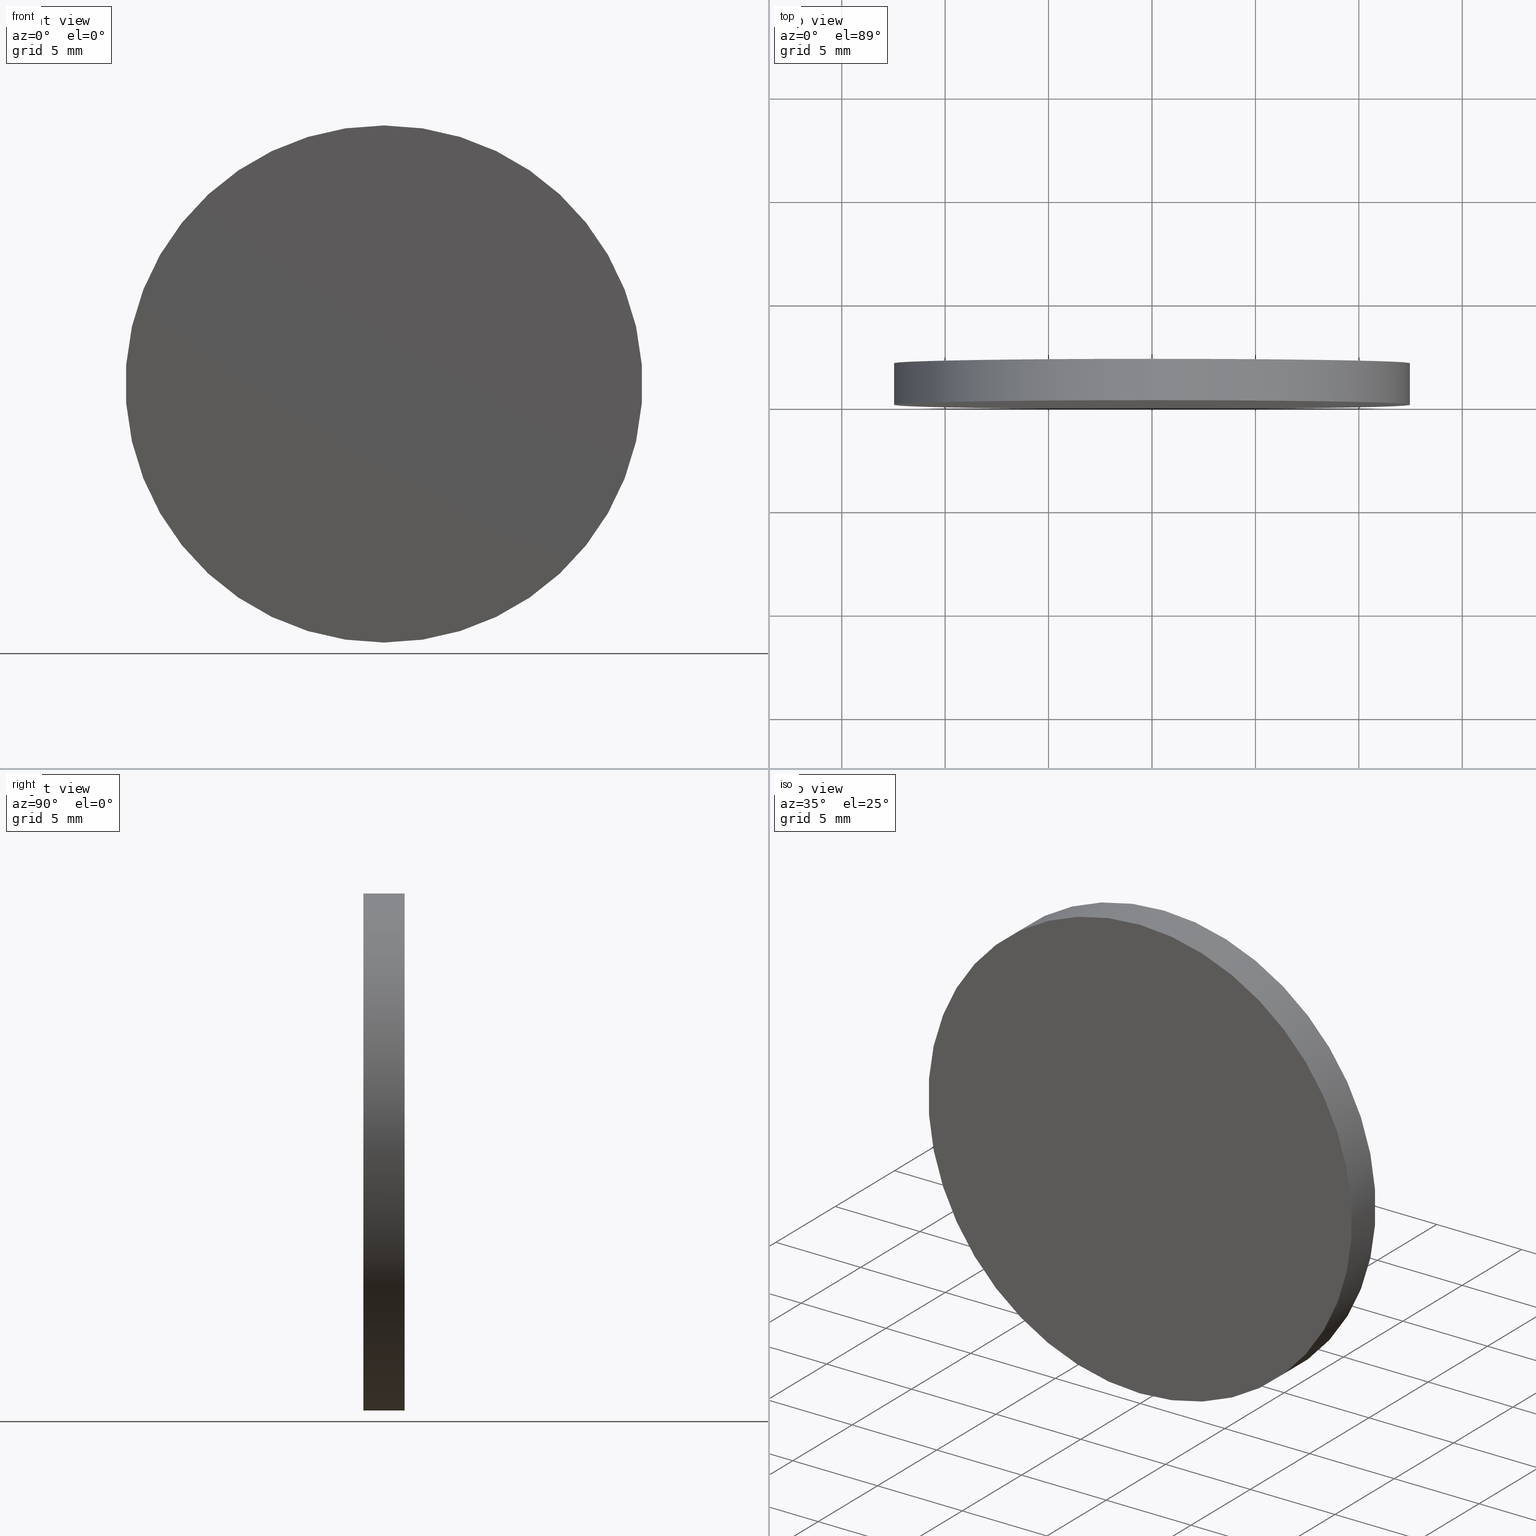
[diagram: canonical four-view strip — front | top / right | iso, engineering-drawing reading convention]
A machine part, canonical four-view strip (front | top / right | iso — engineering-drawing reading convention). The complete STEP part file that produces these views, byte-faithful:
ISO-10303-21;
HEADER;
FILE_DESCRIPTION (( 'STEP AP214' ),
    '1' );
FILE_NAME ('238558.STEP',
    '2019-08-01T02:35:20',
    ( 'user' ),
    ( '΢���й�' ),
    'SwSTEP 2.0',
    'SolidWorks 2016',
    '' );
FILE_SCHEMA (( 'AUTOMOTIVE_DESIGN' ));
ENDSEC;

DATA;
#1 = FACE_OUTER_BOUND ( 'NONE', #89, .T. ) ;
#2 = DIRECTION ( 'NONE',  ( 0.0000000000000000000, 1.000000000000000000, 0.0000000000000000000 ) ) ;
#3 = FACE_OUTER_BOUND ( 'NONE', #85, .T. ) ;
#4 = VERTEX_POINT ( 'NONE', #20 ) ;
#5 = APPLICATION_PROTOCOL_DEFINITION ( 'draft international standard', 'automotive_design', 1998, #135 ) ;
#6 = PLANE ( 'NONE',  #7 ) ;
#7 = AXIS2_PLACEMENT_3D ( 'NONE', #25, #83, #136 ) ;
#8 = ORIENTED_EDGE ( 'NONE', *, *, #108, .F. ) ;
#9 = UNCERTAINTY_MEASURE_WITH_UNIT (LENGTH_MEASURE( 1.000000000000000100E-005 ), #86, 'distance_accuracy_value', 'NONE');
#10 =( NAMED_UNIT ( * ) PLANE_ANGLE_UNIT ( ) SI_UNIT ( $, .RADIAN. ) );
#11 = DIRECTION ( 'NONE',  ( 0.0000000000000000000, 0.0000000000000000000, -1.000000000000000000 ) ) ;
#12 = ORIENTED_EDGE ( 'NONE', *, *, #29, .T. ) ;
#13 = DIRECTION ( 'NONE',  ( -0.0000000000000000000, -1.000000000000000000, -0.0000000000000000000 ) ) ;
#14 =( GEOMETRIC_REPRESENTATION_CONTEXT ( 3 ) GLOBAL_UNCERTAINTY_ASSIGNED_CONTEXT ( ( #127 ) ) GLOBAL_UNIT_ASSIGNED_CONTEXT ( ( #99, #81, #15 ) ) REPRESENTATION_CONTEXT ( 'NONE', 'WORKASPACE' ) );
#15 =( NAMED_UNIT ( * ) SI_UNIT ( $, .STERADIAN. ) SOLID_ANGLE_UNIT ( ) );
#16 = CIRCLE ( 'NONE', #128, 12.50000000000000000 ) ;
#17 = COLOUR_RGB ( '',1.000000000000000000, 1.000000000000000000, 1.000000000000000000 ) ;
#18 = CLOSED_SHELL ( 'NONE', ( #31, #120, #78, #133 ) ) ;
#19 = EDGE_CURVE ( 'NONE', #124, #113, #129, .T. ) ;
#20 = CARTESIAN_POINT ( 'NONE',  ( 0.0000000000000000000, 0.0000000000000000000, -12.50000000000000000 ) ) ;
#21 = DIRECTION ( 'NONE',  ( 0.0000000000000000000, 0.0000000000000000000, 1.000000000000000000 ) ) ;
#22 = EDGE_LOOP ( 'NONE', ( #67, #73 ) ) ;
#23 = SHAPE_DEFINITION_REPRESENTATION ( #106, #97 ) ;
#24 = DIRECTION ( 'NONE',  ( 0.0000000000000000000, 0.0000000000000000000, 1.000000000000000000 ) ) ;
#25 = CARTESIAN_POINT ( 'NONE',  ( 0.0000000000000000000, 0.0000000000000000000, 0.0000000000000000000 ) ) ;
#26 = STYLED_ITEM ( 'NONE', ( #119 ), #97 ) ;
#27 = CARTESIAN_POINT ( 'NONE',  ( 1.530808498934191500E-015, 2.000000000000000000, 12.50000000000000000 ) ) ;
#28 = SURFACE_SIDE_STYLE ('',( #44 ) ) ;
#29 = EDGE_CURVE ( 'NONE', #4, #92, #69, .T. ) ;
#30 = PRODUCT_DEFINITION_CONTEXT ( 'detailed design', #88, 'design' ) ;
#31 = ADVANCED_FACE ( 'NONE', ( #38 ), #132, .T. ) ;
#32 = DIRECTION ( 'NONE',  ( 0.0000000000000000000, 0.0000000000000000000, -1.000000000000000000 ) ) ;
#33 = PRESENTATION_LAYER_ASSIGNMENT (  '', '', ( #26 ) ) ;
#34 =( NAMED_UNIT ( * ) PLANE_ANGLE_UNIT ( ) SI_UNIT ( $, .RADIAN. ) );
#35 = CARTESIAN_POINT ( 'NONE',  ( 0.0000000000000000000, 0.0000000000000000000, 0.0000000000000000000 ) ) ;
#36 = EDGE_LOOP ( 'NONE', ( #51, #91, #46, #8 ) ) ;
#37 = PRODUCT ( '238558', '238558', '', ( #95 ) ) ;
#38 = FACE_OUTER_BOUND ( 'NONE', #36, .T. ) ;
#39 = AXIS2_PLACEMENT_3D ( 'NONE', #87, #126, #11 ) ;
#40 = MECHANICAL_DESIGN_GEOMETRIC_PRESENTATION_REPRESENTATION (  '', ( #26 ), #52 ) ;
#41 = DIRECTION ( 'NONE',  ( 0.0000000000000000000, 1.000000000000000000, 0.0000000000000000000 ) ) ;
#42 = CARTESIAN_POINT ( 'NONE',  ( 1.530808498934191500E-015, 0.0000000000000000000, 12.50000000000000000 ) ) ;
#43 = SURFACE_STYLE_FILL_AREA ( #48 ) ;
#44 = SURFACE_STYLE_FILL_AREA ( #79 ) ;
#45 = CARTESIAN_POINT ( 'NONE',  ( 0.0000000000000000000, 2.000000000000000000, 0.0000000000000000000 ) ) ;
#46 = ORIENTED_EDGE ( 'NONE', *, *, #139, .T. ) ;
#47 = DIRECTION ( 'NONE',  ( 0.0000000000000000000, 0.0000000000000000000, 1.000000000000000000 ) ) ;
#48 = FILL_AREA_STYLE ('',( #68 ) ) ;
#49 = LINE ( 'NONE', #55, #53 ) ;
#50 = STYLED_ITEM ( 'NONE', ( #72 ), #61 ) ;
#51 = ORIENTED_EDGE ( 'NONE', *, *, #103, .F. ) ;
#52 =( GEOMETRIC_REPRESENTATION_CONTEXT ( 3 ) GLOBAL_UNCERTAINTY_ASSIGNED_CONTEXT ( ( #75 ) ) GLOBAL_UNIT_ASSIGNED_CONTEXT ( ( #98, #34, #90 ) ) REPRESENTATION_CONTEXT ( 'NONE', 'WORKASPACE' ) );
#53 = VECTOR ( 'NONE', #57, 1000.000000000000000 ) ;
#54 = ORIENTED_EDGE ( 'NONE', *, *, #19, .T. ) ;
#55 = CARTESIAN_POINT ( 'NONE',  ( 0.0000000000000000000, 2.000000000000000000, -12.50000000000000000 ) ) ;
#56 = CARTESIAN_POINT ( 'NONE',  ( 1.530808498934191500E-015, 2.000000000000000000, 12.50000000000000000 ) ) ;
#57 = DIRECTION ( 'NONE',  ( -0.0000000000000000000, -1.000000000000000000, -0.0000000000000000000 ) ) ;
#58 = PRESENTATION_LAYER_ASSIGNMENT (  '', '', ( #50 ) ) ;
#59 = ORIENTED_EDGE ( 'NONE', *, *, #108, .T. ) ;
#60 = DIRECTION ( 'NONE',  ( 1.000000000000000000, 0.0000000000000000000, 0.0000000000000000000 ) ) ;
#61 = MANIFOLD_SOLID_BREP ( '͹̨-����1', #18 ) ;
#62 = COLOUR_RGB ( '',1.000000000000000000, 1.000000000000000000, 1.000000000000000000 ) ;
#63 = AXIS2_PLACEMENT_3D ( 'NONE', #77, #2, #65 ) ;
#64 = DIRECTION ( 'NONE',  ( -0.0000000000000000000, -1.000000000000000000, -0.0000000000000000000 ) ) ;
#65 = DIRECTION ( 'NONE',  ( 0.0000000000000000000, 0.0000000000000000000, 1.000000000000000000 ) ) ;
#66 = CYLINDRICAL_SURFACE ( 'NONE', #140, 12.50000000000000000 ) ;
#67 = ORIENTED_EDGE ( 'NONE', *, *, #29, .F. ) ;
#68 = FILL_AREA_STYLE_COLOUR ( '', #62 ) ;
#69 = CIRCLE ( 'NONE', #63, 12.50000000000000000 ) ;
#70 = AXIS2_PLACEMENT_3D ( 'NONE', #84, #94, #21 ) ;
#71 = AXIS2_PLACEMENT_3D ( 'NONE', #123, #109, #60 ) ;
#72 = PRESENTATION_STYLE_ASSIGNMENT (( #93 ) ) ;
#73 = ORIENTED_EDGE ( 'NONE', *, *, #139, .F. ) ;
#74 = EDGE_CURVE ( 'NONE', #113, #92, #138, .T. ) ;
#75 = UNCERTAINTY_MEASURE_WITH_UNIT (LENGTH_MEASURE( 1.000000000000000100E-005 ), #98, 'distance_accuracy_value', 'NONE');
#76 =( NAMED_UNIT ( * ) SI_UNIT ( $, .STERADIAN. ) SOLID_ANGLE_UNIT ( ) );
#77 = CARTESIAN_POINT ( 'NONE',  ( 0.0000000000000000000, 0.0000000000000000000, 0.0000000000000000000 ) ) ;
#78 = ADVANCED_FACE ( 'NONE', ( #3 ), #115, .T. ) ;
#79 = FILL_AREA_STYLE ('',( #131 ) ) ;
#80 = PRODUCT_DEFINITION ( 'δ֪', '', #111, #30 ) ;
#81 =( NAMED_UNIT ( * ) PLANE_ANGLE_UNIT ( ) SI_UNIT ( $, .RADIAN. ) );
#82 = CIRCLE ( 'NONE', #112, 12.50000000000000000 ) ;
#83 = DIRECTION ( 'NONE',  ( 0.0000000000000000000, 1.000000000000000000, 0.0000000000000000000 ) ) ;
#84 = CARTESIAN_POINT ( 'NONE',  ( 0.0000000000000000000, 2.000000000000000000, 0.0000000000000000000 ) ) ;
#85 = EDGE_LOOP ( 'NONE', ( #54, #102 ) ) ;
#86 =( LENGTH_UNIT ( ) NAMED_UNIT ( * ) SI_UNIT ( .MILLI., .METRE. ) );
#87 = CARTESIAN_POINT ( 'NONE',  ( 0.0000000000000000000, 2.000000000000000000, 0.0000000000000000000 ) ) ;
#88 = APPLICATION_CONTEXT ( 'automotive_design' ) ;
#89 = EDGE_LOOP ( 'NONE', ( #96, #125, #59, #12 ) ) ;
#90 =( NAMED_UNIT ( * ) SI_UNIT ( $, .STERADIAN. ) SOLID_ANGLE_UNIT ( ) );
#91 = ORIENTED_EDGE ( 'NONE', *, *, #74, .T. ) ;
#92 = VERTEX_POINT ( 'NONE', #42 ) ;
#93 = SURFACE_STYLE_USAGE ( .BOTH. , #28 ) ;
#94 = DIRECTION ( 'NONE',  ( 0.0000000000000000000, 1.000000000000000000, 0.0000000000000000000 ) ) ;
#95 = PRODUCT_CONTEXT ( 'NONE', #135, 'mechanical' ) ;
#96 = ORIENTED_EDGE ( 'NONE', *, *, #74, .F. ) ;
#97 = ADVANCED_BREP_SHAPE_REPRESENTATION ( '238558', ( #61, #71 ), #14 ) ;
#98 =( LENGTH_UNIT ( ) NAMED_UNIT ( * ) SI_UNIT ( .MILLI., .METRE. ) );
#99 =( LENGTH_UNIT ( ) NAMED_UNIT ( * ) SI_UNIT ( .MILLI., .METRE. ) );
#100 = CARTESIAN_POINT ( 'NONE',  ( 0.0000000000000000000, 2.000000000000000000, -12.50000000000000000 ) ) ;
#101 = VECTOR ( 'NONE', #64, 1000.000000000000000 ) ;
#102 = ORIENTED_EDGE ( 'NONE', *, *, #103, .T. ) ;
#103 = EDGE_CURVE ( 'NONE', #113, #124, #82, .T. ) ;
#104 = DIRECTION ( 'NONE',  ( 0.0000000000000000000, -0.0000000000000000000, 1.000000000000000000 ) ) ;
#105 = FACE_OUTER_BOUND ( 'NONE', #22, .T. ) ;
#106 = PRODUCT_DEFINITION_SHAPE ( 'NONE', 'NONE',  #80 ) ;
#107 = CARTESIAN_POINT ( 'NONE',  ( 0.0000000000000000000, 2.000000000000000000, 0.0000000000000000000 ) ) ;
#108 = EDGE_CURVE ( 'NONE', #124, #4, #49, .T. ) ;
#109 = DIRECTION ( 'NONE',  ( 0.0000000000000000000, 0.0000000000000000000, 1.000000000000000000 ) ) ;
#110 = DIRECTION ( 'NONE',  ( 0.0000000000000000000, 1.000000000000000000, 0.0000000000000000000 ) ) ;
#111 = PRODUCT_DEFINITION_FORMATION_WITH_SPECIFIED_SOURCE ( '�κ�', '', #37, .NOT_KNOWN. ) ;
#112 = AXIS2_PLACEMENT_3D ( 'NONE', #45, #118, #47 ) ;
#113 = VERTEX_POINT ( 'NONE', #27 ) ;
#114 = AXIS2_PLACEMENT_3D ( 'NONE', #116, #41, #104 ) ;
#115 = PLANE ( 'NONE',  #114 ) ;
#116 = CARTESIAN_POINT ( 'NONE',  ( 0.0000000000000000000, 2.000000000000000000, 0.0000000000000000000 ) ) ;
#117 = PRODUCT_RELATED_PRODUCT_CATEGORY ( 'part', '', ( #37 ) ) ;
#118 = DIRECTION ( 'NONE',  ( 0.0000000000000000000, 1.000000000000000000, 0.0000000000000000000 ) ) ;
#119 = PRESENTATION_STYLE_ASSIGNMENT (( #121 ) ) ;
#120 = ADVANCED_FACE ( 'NONE', ( #1 ), #66, .T. ) ;
#121 = SURFACE_STYLE_USAGE ( .BOTH. , #122 ) ;
#122 = SURFACE_SIDE_STYLE ('',( #43 ) ) ;
#123 = CARTESIAN_POINT ( 'NONE',  ( 0.0000000000000000000, 0.0000000000000000000, 0.0000000000000000000 ) ) ;
#124 = VERTEX_POINT ( 'NONE', #100 ) ;
#125 = ORIENTED_EDGE ( 'NONE', *, *, #19, .F. ) ;
#126 = DIRECTION ( 'NONE',  ( -0.0000000000000000000, -1.000000000000000000, -0.0000000000000000000 ) ) ;
#127 = UNCERTAINTY_MEASURE_WITH_UNIT (LENGTH_MEASURE( 1.000000000000000100E-005 ), #99, 'distance_accuracy_value', 'NONE');
#128 = AXIS2_PLACEMENT_3D ( 'NONE', #35, #110, #24 ) ;
#129 = CIRCLE ( 'NONE', #70, 12.50000000000000000 ) ;
#130 = MECHANICAL_DESIGN_GEOMETRIC_PRESENTATION_REPRESENTATION (  '', ( #50 ), #137 ) ;
#131 = FILL_AREA_STYLE_COLOUR ( '', #17 ) ;
#132 = CYLINDRICAL_SURFACE ( 'NONE', #39, 12.50000000000000000 ) ;
#133 = ADVANCED_FACE ( 'NONE', ( #105 ), #6, .F. ) ;
#134 = APPLICATION_PROTOCOL_DEFINITION ( 'draft international standard', 'automotive_design', 1998, #88 ) ;
#135 = APPLICATION_CONTEXT ( 'automotive_design' ) ;
#136 = DIRECTION ( 'NONE',  ( 0.0000000000000000000, -0.0000000000000000000, 1.000000000000000000 ) ) ;
#137 =( GEOMETRIC_REPRESENTATION_CONTEXT ( 3 ) GLOBAL_UNCERTAINTY_ASSIGNED_CONTEXT ( ( #9 ) ) GLOBAL_UNIT_ASSIGNED_CONTEXT ( ( #86, #10, #76 ) ) REPRESENTATION_CONTEXT ( 'NONE', 'WORKASPACE' ) );
#138 = LINE ( 'NONE', #56, #101 ) ;
#139 = EDGE_CURVE ( 'NONE', #92, #4, #16, .T. ) ;
#140 = AXIS2_PLACEMENT_3D ( 'NONE', #107, #13, #32 ) ;
ENDSEC;
END-ISO-10303-21;
